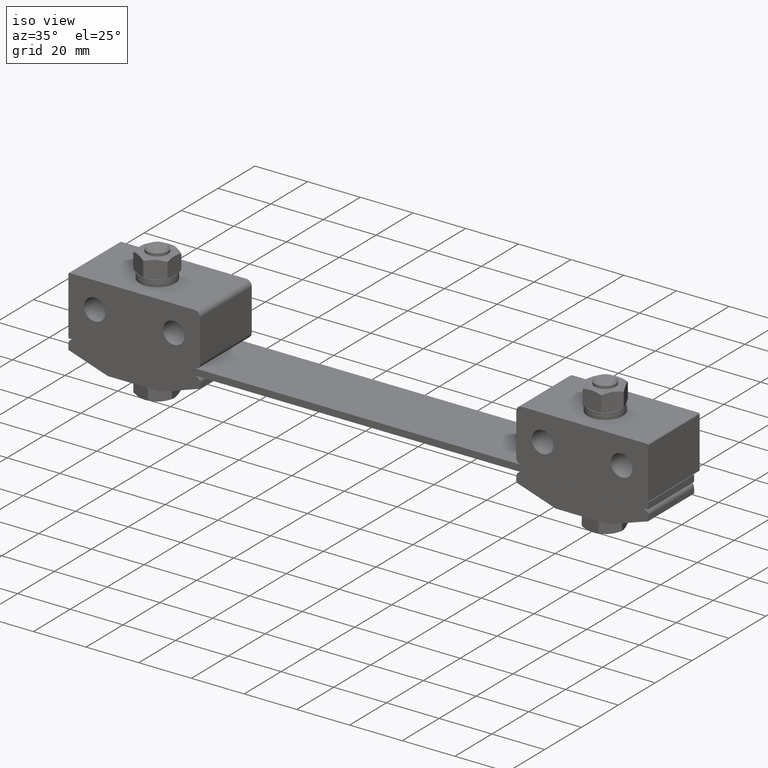
[diagram: clean part render]
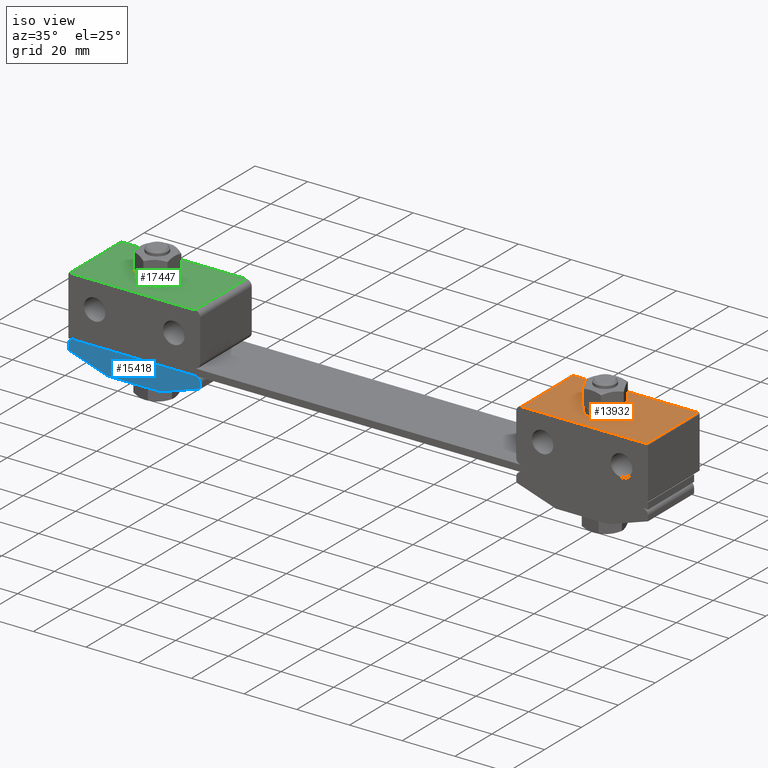
[diagram: same view with three faces highlighted in distinct colors, each labeled with its STEP entity id]
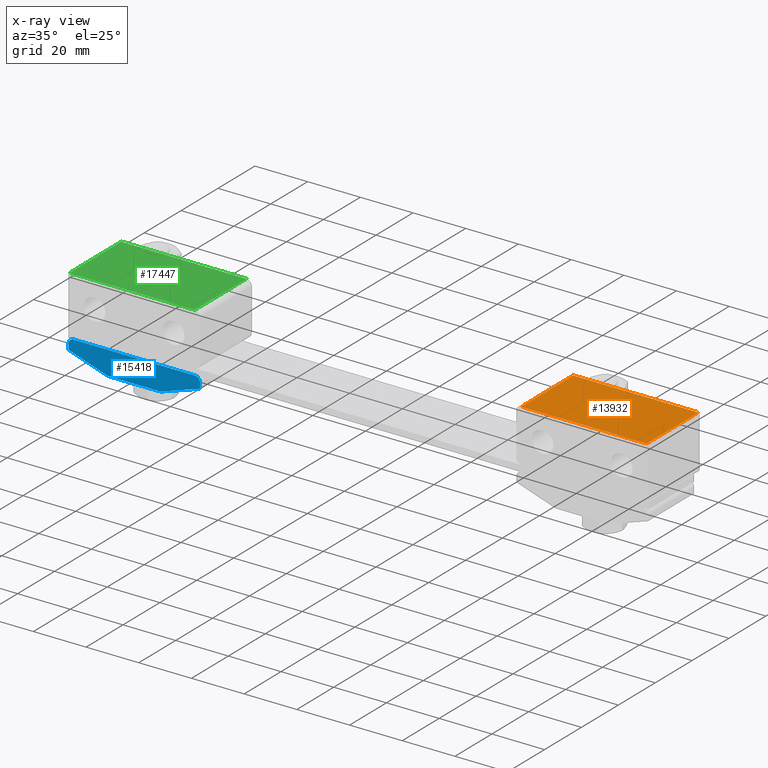
[diagram: x-ray of the same camera — body ghosted, the three highlighted faces saturated]
A machine part, iso view with three faces highlighted in distinct colors.
The next image is the same camera in x-ray (body ghosted, the three faces saturated) — at least one of them is partly hidden behind the body in this view.
Their STEP definitions:

[orange] entity #13932 — the highlighted planar face has unit normal (0, 0, -1).
#14 = AXIS2_PLACEMENT_3D ( 'NONE', #19263, #13162, #13032 ) ;
#109 = EDGE_CURVE ( 'NONE', #2316, #5480, #18462, .T. ) ;
#203 = DIRECTION ( 'NONE',  ( 1.000000000000000000, 0.0000000000000000000, 0.0000000000000000000 ) ) ;
#1072 = CARTESIAN_POINT ( 'NONE',  ( 109.5000000000000000, 15.50000000000000000, 22.50000000000000000 ) ) ;
#1481 = EDGE_LOOP ( 'NONE', ( #4092, #3150, #4748, #11228 ) ) ;
#1514 = DIRECTION ( 'NONE',  ( 0.0000000000000000000, 0.0000000000000000000, -1.000000000000000000 ) ) ;
#2292 = AXIS2_PLACEMENT_3D ( 'NONE', #9449, #1514, #12424 ) ;
#2316 = VERTEX_POINT ( 'NONE', #5926 ) ;
#2506 = CARTESIAN_POINT ( 'NONE',  ( 62.00000000000000000, -12.50000000000000000, 22.50000000000000000 ) ) ;
#2947 = CIRCLE ( 'NONE', #14, 4.100000000000006800 ) ;
#3030 = CARTESIAN_POINT ( 'NONE',  ( 89.10000000000000900, 1.908195823574490000E-014, 22.50000000000000000 ) ) ;
#3150 = ORIENTED_EDGE ( 'NONE', *, *, #9940, .T. ) ;
#3434 = LINE ( 'NONE', #14470, #13281 ) ;
#4092 = ORIENTED_EDGE ( 'NONE', *, *, #16004, .F. ) ;
#4417 = ORIENTED_EDGE ( 'NONE', *, *, #10235, .T. ) ;
#4748 = ORIENTED_EDGE ( 'NONE', *, *, #109, .F. ) ;
#5480 = VERTEX_POINT ( 'NONE', #1072 ) ;
#5686 = VECTOR ( 'NONE', #7068, 1000.000000000000000 ) ;
#5926 = CARTESIAN_POINT ( 'NONE',  ( 62.00000000000000000, 15.50000000000000000, 22.50000000000000000 ) ) ;
#7066 = VECTOR ( 'NONE', #7623, 1000.000000000000000 ) ;
#7068 = DIRECTION ( 'NONE',  ( 1.000000000000000000, 0.0000000000000000000, 0.0000000000000000000 ) ) ;
#7091 = VERTEX_POINT ( 'NONE', #11601 ) ;
#7347 = CARTESIAN_POINT ( 'NONE',  ( 62.00000000000000000, 15.50000000000000000, 22.50000000000000000 ) ) ;
#7623 = DIRECTION ( 'NONE',  ( -0.0000000000000000000, -1.000000000000000000, -0.0000000000000000000 ) ) ;
#8101 = CARTESIAN_POINT ( 'NONE',  ( 109.5000000000000000, 15.50000000000000000, 22.50000000000000000 ) ) ;
#8198 = DIRECTION ( 'NONE',  ( -1.000000000000000000, 0.0000000000000000000, 0.0000000000000000000 ) ) ;
#9390 = PLANE ( 'NONE',  #13368 ) ;
#9449 = CARTESIAN_POINT ( 'NONE',  ( 85.00000000000000000, 1.908195823574490000E-014, 22.50000000000000000 ) ) ;
#9456 = CARTESIAN_POINT ( 'NONE',  ( 60.00000000000000000, 15.50000000000000000, 22.50000000000000000 ) ) ;
#9847 = VERTEX_POINT ( 'NONE', #3030 ) ;
#9940 = EDGE_CURVE ( 'NONE', #7091, #5480, #18205, .T. ) ;
#10235 = EDGE_CURVE ( 'NONE', #9847, #13684, #2947, .T. ) ;
#10623 = FACE_OUTER_BOUND ( 'NONE', #1481, .T. ) ;
#11090 = EDGE_CURVE ( 'NONE', #2316, #14394, #15684, .T. ) ;
#11228 = ORIENTED_EDGE ( 'NONE', *, *, #11090, .T. ) ;
#11421 = EDGE_CURVE ( 'NONE', #13684, #9847, #13225, .T. ) ;
#11601 = CARTESIAN_POINT ( 'NONE',  ( 109.5000000000000000, -12.50000000000000000, 22.50000000000000000 ) ) ;
#12424 = DIRECTION ( 'NONE',  ( 1.000000000000000000, 0.0000000000000000000, 0.0000000000000000000 ) ) ;
#12865 = FACE_BOUND ( 'NONE', #13464, .T. ) ;
#13032 = DIRECTION ( 'NONE',  ( 1.000000000000000000, 0.0000000000000000000, 0.0000000000000000000 ) ) ;
#13162 = DIRECTION ( 'NONE',  ( 0.0000000000000000000, 0.0000000000000000000, -1.000000000000000000 ) ) ;
#13216 = CARTESIAN_POINT ( 'NONE',  ( 60.00000000000000000, 15.50000000000000000, 22.50000000000000000 ) ) ;
#13225 = CIRCLE ( 'NONE', #2292, 4.100000000000006800 ) ;
#13281 = VECTOR ( 'NONE', #8198, 1000.000000000000000 ) ;
#13368 = AXIS2_PLACEMENT_3D ( 'NONE', #9456, #14158, #203 ) ;
#13464 = EDGE_LOOP ( 'NONE', ( #4417, #15047 ) ) ;
#13684 = VERTEX_POINT ( 'NONE', #17747 ) ;
#13932 = ADVANCED_FACE ( 'NONE', ( #12865, #10623 ), #9390, .F. ) ;
#14158 = DIRECTION ( 'NONE',  ( 0.0000000000000000000, 0.0000000000000000000, -1.000000000000000000 ) ) ;
#14394 = VERTEX_POINT ( 'NONE', #2506 ) ;
#14436 = DIRECTION ( 'NONE',  ( -0.0000000000000000000, 1.000000000000000000, -0.0000000000000000000 ) ) ;
#14470 = CARTESIAN_POINT ( 'NONE',  ( 60.00000000000000000, -12.50000000000000000, 22.50000000000000000 ) ) ;
#15047 = ORIENTED_EDGE ( 'NONE', *, *, #11421, .T. ) ;
#15684 = LINE ( 'NONE', #7347, #7066 ) ;
#16004 = EDGE_CURVE ( 'NONE', #7091, #14394, #3434, .T. ) ;
#17747 = CARTESIAN_POINT ( 'NONE',  ( 80.90000000000000600, 1.857985304809448200E-014, 22.50000000000000000 ) ) ;
#18205 = LINE ( 'NONE', #8101, #19690 ) ;
#18462 = LINE ( 'NONE', #13216, #5686 ) ;
#19263 = CARTESIAN_POINT ( 'NONE',  ( 85.00000000000000000, 1.908195823574490000E-014, 22.50000000000000000 ) ) ;
#19690 = VECTOR ( 'NONE', #14436, 1000.000000000000000 ) ;

[blue] entity #15418 — the highlighted planar face has unit normal (0, 1, 0).
#158 = DIRECTION ( 'NONE',  ( 0.0000000000000000000, 0.0000000000000000000, -1.000000000000000000 ) ) ;
#671 = CARTESIAN_POINT ( 'NONE',  ( -111.1999999999999900, -12.50000000000000000, -3.600000000000000100 ) ) ;
#946 = CIRCLE ( 'NONE', #16737, 2.000000000000000000 ) ;
#953 = AXIS2_PLACEMENT_3D ( 'NONE', #13605, #19859, #15175 ) ;
#1478 = ORIENTED_EDGE ( 'NONE', *, *, #18634, .T. ) ;
#1524 = CARTESIAN_POINT ( 'NONE',  ( -60.00000000000000000, -12.50000000000000000, -4.000000000000000000 ) ) ;
#1721 = DIRECTION ( 'NONE',  ( 1.000000000000000000, 0.0000000000000000000, 0.0000000000000000000 ) ) ;
#1944 = CARTESIAN_POINT ( 'NONE',  ( -110.0000000000000000, -12.50000000000000000, 0.0000000000000000000 ) ) ;
#1998 = VERTEX_POINT ( 'NONE', #3752 ) ;
#2174 = DIRECTION ( 'NONE',  ( 0.9486832980505137700, 0.0000000000000000000, -0.3162277660168380000 ) ) ;
#2343 = VECTOR ( 'NONE', #17622, 1000.000000000000000 ) ;
#2401 = ORIENTED_EDGE ( 'NONE', *, *, #18663, .T. ) ;
#2647 = LINE ( 'NONE', #13985, #7018 ) ;
#3033 = LINE ( 'NONE', #6609, #2343 ) ;
#3314 = EDGE_CURVE ( 'NONE', #6893, #15790, #5049, .T. ) ;
#3752 = CARTESIAN_POINT ( 'NONE',  ( -110.0000000000000000, -12.50000000000000000, -4.000000000000000000 ) ) ;
#4778 = VERTEX_POINT ( 'NONE', #6176 ) ;
#5020 = VECTOR ( 'NONE', #6187, 999.9999999999998900 ) ;
#5049 = CIRCLE ( 'NONE', #953, 2.000000000000000000 ) ;
#5135 = CARTESIAN_POINT ( 'NONE',  ( -60.00000000000000000, -12.50000000000000000, -2.000000000000000000 ) ) ;
#5617 = EDGE_LOOP ( 'NONE', ( #15912, #19895, #8413, #2401, #12616, #6217, #9388, #1478 ) ) ;
#6176 = CARTESIAN_POINT ( 'NONE',  ( -110.0000000000000000, -12.50000000000000000, -2.000000000000000000 ) ) ;
#6187 = DIRECTION ( 'NONE',  ( 0.9486832980505137700, 0.0000000000000000000, 0.3162277660168380000 ) ) ;
#6217 = ORIENTED_EDGE ( 'NONE', *, *, #7913, .T. ) ;
#6456 = CARTESIAN_POINT ( 'NONE',  ( -110.0000000000000000, -12.50000000000000000, 0.0000000000000000000 ) ) ;
#6506 = VECTOR ( 'NONE', #158, 1000.000000000000000 ) ;
#6609 = CARTESIAN_POINT ( 'NONE',  ( -60.00000000000000000, -12.50000000000000000, 0.0000000000000000000 ) ) ;
#6768 = VERTEX_POINT ( 'NONE', #17436 ) ;
#6893 = VERTEX_POINT ( 'NONE', #5135 ) ;
#7018 = VECTOR ( 'NONE', #15759, 1000.000000000000000 ) ;
#7278 = CARTESIAN_POINT ( 'NONE',  ( -110.0000000000000000, -12.50000000000000000, 0.0000000000000000000 ) ) ;
#7304 = LINE ( 'NONE', #6456, #8794 ) ;
#7435 = AXIS2_PLACEMENT_3D ( 'NONE', #7278, #7544, #20129 ) ;
#7544 = DIRECTION ( 'NONE',  ( 0.0000000000000000000, 1.000000000000000000, 0.0000000000000000000 ) ) ;
#7845 = EDGE_CURVE ( 'NONE', #6768, #15790, #7304, .T. ) ;
#7913 = EDGE_CURVE ( 'NONE', #1998, #16572, #8284, .T. ) ;
#8102 = DIRECTION ( 'NONE',  ( -0.0000000000000000000, -1.000000000000000000, -0.0000000000000000000 ) ) ;
#8233 = DIRECTION ( 'NONE',  ( 0.0000000000000000000, 0.0000000000000000000, 1.000000000000000000 ) ) ;
#8284 = LINE ( 'NONE', #671, #14451 ) ;
#8413 = ORIENTED_EDGE ( 'NONE', *, *, #7845, .F. ) ;
#8657 = EDGE_CURVE ( 'NONE', #16572, #16958, #2647, .T. ) ;
#8794 = VECTOR ( 'NONE', #1721, 1000.000000000000000 ) ;
#9096 = CARTESIAN_POINT ( 'NONE',  ( -62.00000000000000000, -12.50000000000000000, 0.0000000000000000000 ) ) ;
#9122 = PLANE ( 'NONE',  #7435 ) ;
#9388 = ORIENTED_EDGE ( 'NONE', *, *, #8657, .T. ) ;
#9899 = VERTEX_POINT ( 'NONE', #1524 ) ;
#9945 = LINE ( 'NONE', #1944, #6506 ) ;
#12435 = CARTESIAN_POINT ( 'NONE',  ( -103.8000000000000000, -12.50000000000000000, -18.59999999999999800 ) ) ;
#12616 = ORIENTED_EDGE ( 'NONE', *, *, #18069, .T. ) ;
#12794 = CARTESIAN_POINT ( 'NONE',  ( -108.0000000000000000, -12.50000000000000000, -2.000000000000000000 ) ) ;
#13501 = EDGE_CURVE ( 'NONE', #6893, #9899, #3033, .T. ) ;
#13605 = CARTESIAN_POINT ( 'NONE',  ( -62.00000000000000000, -12.50000000000000000, -2.000000000000000000 ) ) ;
#13985 = CARTESIAN_POINT ( 'NONE',  ( -110.0000000000000000, -12.50000000000000000, -9.000000000000000000 ) ) ;
#14339 = CARTESIAN_POINT ( 'NONE',  ( -75.00000000000000000, -12.50000000000000000, -9.000000000000000000 ) ) ;
#14451 = VECTOR ( 'NONE', #2174, 999.9999999999998900 ) ;
#15175 = DIRECTION ( 'NONE',  ( 0.0000000000000000000, 0.0000000000000000000, 1.000000000000000000 ) ) ;
#15418 = ADVANCED_FACE ( 'NONE', ( #17477 ), #9122, .F. ) ;
#15759 = DIRECTION ( 'NONE',  ( 1.000000000000000000, 0.0000000000000000000, 0.0000000000000000000 ) ) ;
#15790 = VERTEX_POINT ( 'NONE', #9096 ) ;
#15912 = ORIENTED_EDGE ( 'NONE', *, *, #13501, .F. ) ;
#16572 = VERTEX_POINT ( 'NONE', #16616 ) ;
#16616 = CARTESIAN_POINT ( 'NONE',  ( -95.00000000000000000, -12.50000000000000000, -9.000000000000000000 ) ) ;
#16737 = AXIS2_PLACEMENT_3D ( 'NONE', #12794, #8102, #8233 ) ;
#16958 = VERTEX_POINT ( 'NONE', #14339 ) ;
#17436 = CARTESIAN_POINT ( 'NONE',  ( -108.0000000000000000, -12.50000000000000000, 0.0000000000000000000 ) ) ;
#17477 = FACE_OUTER_BOUND ( 'NONE', #5617, .T. ) ;
#17622 = DIRECTION ( 'NONE',  ( 0.0000000000000000000, 0.0000000000000000000, -1.000000000000000000 ) ) ;
#18069 = EDGE_CURVE ( 'NONE', #4778, #1998, #9945, .T. ) ;
#18634 = EDGE_CURVE ( 'NONE', #16958, #9899, #19533, .T. ) ;
#18663 = EDGE_CURVE ( 'NONE', #6768, #4778, #946, .T. ) ;
#19533 = LINE ( 'NONE', #12435, #5020 ) ;
#19859 = DIRECTION ( 'NONE',  ( -0.0000000000000000000, -1.000000000000000000, -0.0000000000000000000 ) ) ;
#19895 = ORIENTED_EDGE ( 'NONE', *, *, #3314, .T. ) ;
#20129 = DIRECTION ( 'NONE',  ( 0.0000000000000000000, 0.0000000000000000000, 1.000000000000000000 ) ) ;

[green] entity #17447 — the highlighted planar face has unit normal (0, 0, 1).
#83 = DIRECTION ( 'NONE',  ( 0.0000000000000000000, -1.000000000000000000, 0.0000000000000000000 ) ) ;
#142 = CARTESIAN_POINT ( 'NONE',  ( -109.5000000000000000, -12.50000000000000000, 22.50000000000000000 ) ) ;
#429 = CARTESIAN_POINT ( 'NONE',  ( -85.00000000000000000, -5.204170427930419700E-015, 22.50000000000000000 ) ) ;
#651 = CIRCLE ( 'NONE', #12292, 4.100000000000006800 ) ;
#695 = ORIENTED_EDGE ( 'NONE', *, *, #18098, .F. ) ;
#961 = EDGE_LOOP ( 'NONE', ( #695, #8531 ) ) ;
#1034 = VERTEX_POINT ( 'NONE', #8850 ) ;
#1082 = CARTESIAN_POINT ( 'NONE',  ( -62.00000000000000000, 15.50000000000000000, 22.50000000000000000 ) ) ;
#1166 = ORIENTED_EDGE ( 'NONE', *, *, #15617, .T. ) ;
#1206 = VERTEX_POINT ( 'NONE', #10490 ) ;
#1471 = FACE_BOUND ( 'NONE', #961, .T. ) ;
#2807 = VECTOR ( 'NONE', #8395, 1000.000000000000000 ) ;
#2920 = VECTOR ( 'NONE', #19812, 1000.000000000000000 ) ;
#3532 = VECTOR ( 'NONE', #83, 1000.000000000000000 ) ;
#4079 = CIRCLE ( 'NONE', #16063, 4.100000000000006800 ) ;
#4126 = DIRECTION ( 'NONE',  ( 1.000000000000000000, 0.0000000000000000000, 0.0000000000000000000 ) ) ;
#4775 = VERTEX_POINT ( 'NONE', #9183 ) ;
#5015 = EDGE_LOOP ( 'NONE', ( #20160, #12065, #1166, #17248 ) ) ;
#5843 = VERTEX_POINT ( 'NONE', #12270 ) ;
#5971 = VERTEX_POINT ( 'NONE', #17228 ) ;
#6229 = DIRECTION ( 'NONE',  ( 0.0000000000000000000, 0.0000000000000000000, 1.000000000000000000 ) ) ;
#7402 = DIRECTION ( 'NONE',  ( 0.0000000000000000000, 0.0000000000000000000, 1.000000000000000000 ) ) ;
#7570 = EDGE_CURVE ( 'NONE', #4775, #1206, #12757, .T. ) ;
#7991 = DIRECTION ( 'NONE',  ( 0.0000000000000000000, 0.0000000000000000000, 1.000000000000000000 ) ) ;
#8395 = DIRECTION ( 'NONE',  ( -1.000000000000000000, 0.0000000000000000000, 0.0000000000000000000 ) ) ;
#8531 = ORIENTED_EDGE ( 'NONE', *, *, #14603, .F. ) ;
#8850 = CARTESIAN_POINT ( 'NONE',  ( -89.10000000000000900, -5.204170427930419700E-015, 22.50000000000000000 ) ) ;
#9183 = CARTESIAN_POINT ( 'NONE',  ( -62.00000000000000000, -12.50000000000000000, 22.50000000000000000 ) ) ;
#9562 = CARTESIAN_POINT ( 'NONE',  ( -85.00000000000000000, -5.204170427930419700E-015, 22.50000000000000000 ) ) ;
#10490 = CARTESIAN_POINT ( 'NONE',  ( -62.00000000000000000, 15.50000000000000000, 22.50000000000000000 ) ) ;
#10799 = LINE ( 'NONE', #17178, #19178 ) ;
#11906 = CARTESIAN_POINT ( 'NONE',  ( -109.5000000000000000, -12.50000000000000000, 22.50000000000000000 ) ) ;
#12065 = ORIENTED_EDGE ( 'NONE', *, *, #19473, .T. ) ;
#12270 = CARTESIAN_POINT ( 'NONE',  ( -109.5000000000000000, 15.50000000000000000, 22.50000000000000000 ) ) ;
#12292 = AXIS2_PLACEMENT_3D ( 'NONE', #9562, #6229, #18799 ) ;
#12757 = LINE ( 'NONE', #1082, #2920 ) ;
#13702 = EDGE_CURVE ( 'NONE', #1206, #5843, #16058, .T. ) ;
#13799 = CARTESIAN_POINT ( 'NONE',  ( -60.00000000000000000, 15.50000000000000000, 22.50000000000000000 ) ) ;
#14603 = EDGE_CURVE ( 'NONE', #5971, #1034, #651, .T. ) ;
#15617 = EDGE_CURVE ( 'NONE', #18375, #4775, #10799, .T. ) ;
#15891 = DIRECTION ( 'NONE',  ( -1.000000000000000000, 0.0000000000000000000, 0.0000000000000000000 ) ) ;
#16058 = LINE ( 'NONE', #16229, #2807 ) ;
#16063 = AXIS2_PLACEMENT_3D ( 'NONE', #429, #7991, #15891 ) ;
#16229 = CARTESIAN_POINT ( 'NONE',  ( -60.00000000000000000, 15.50000000000000000, 22.50000000000000000 ) ) ;
#17178 = CARTESIAN_POINT ( 'NONE',  ( -60.00000000000000000, -12.50000000000000000, 22.50000000000000000 ) ) ;
#17228 = CARTESIAN_POINT ( 'NONE',  ( -80.90000000000000600, -5.706275615580833700E-015, 22.50000000000000000 ) ) ;
#17248 = ORIENTED_EDGE ( 'NONE', *, *, #7570, .T. ) ;
#17447 = ADVANCED_FACE ( 'NONE', ( #1471, #19094 ), #20062, .T. ) ;
#17801 = LINE ( 'NONE', #142, #3532 ) ;
#18098 = EDGE_CURVE ( 'NONE', #1034, #5971, #4079, .T. ) ;
#18352 = DIRECTION ( 'NONE',  ( -1.000000000000000000, 0.0000000000000000000, 0.0000000000000000000 ) ) ;
#18375 = VERTEX_POINT ( 'NONE', #11906 ) ;
#18799 = DIRECTION ( 'NONE',  ( -1.000000000000000000, 0.0000000000000000000, 0.0000000000000000000 ) ) ;
#19094 = FACE_OUTER_BOUND ( 'NONE', #5015, .T. ) ;
#19178 = VECTOR ( 'NONE', #4126, 1000.000000000000000 ) ;
#19459 = AXIS2_PLACEMENT_3D ( 'NONE', #13799, #7402, #18352 ) ;
#19473 = EDGE_CURVE ( 'NONE', #5843, #18375, #17801, .T. ) ;
#19812 = DIRECTION ( 'NONE',  ( 0.0000000000000000000, 1.000000000000000000, 0.0000000000000000000 ) ) ;
#20062 = PLANE ( 'NONE',  #19459 ) ;
#20160 = ORIENTED_EDGE ( 'NONE', *, *, #13702, .T. ) ;